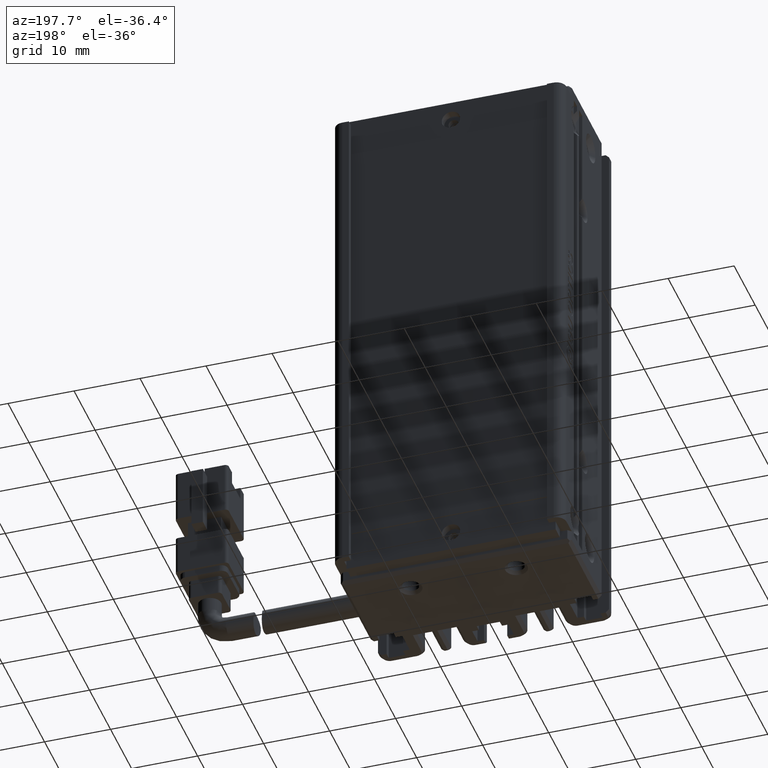
[diagram: clean part render]
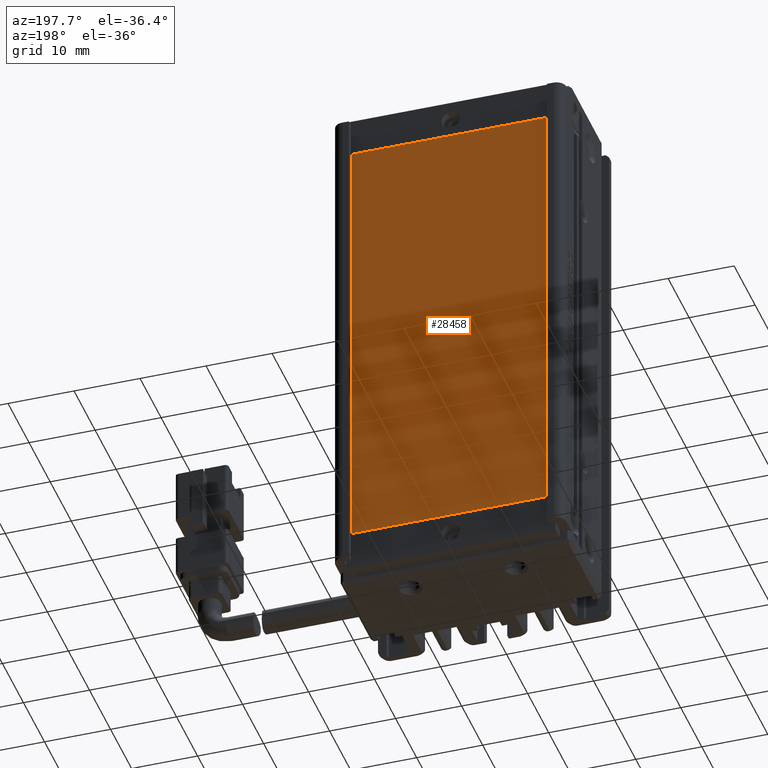
[diagram: same view with one face highlighted and labeled with its STEP entity id]
A machine part, auxiliary view. The second image highlights one B-rep face of the part: STEP entity #28458.
In plain terms, the highlighted planar face has unit normal (0, 1, -0).
Its self-contained STEP definition (entity closure, byte-faithful):
#8 = FACE_OUTER_BOUND ( 'NONE', #24729, .T. ) ;
#977 = EDGE_CURVE ( 'NONE', #12834, #3051, #6897, .T. ) ;
#3051 = VERTEX_POINT ( 'NONE', #7788 ) ;
#5732 = CARTESIAN_POINT ( 'NONE',  ( 0.0000000000000000000, 33.69073232304837300, 0.0000000000000000000 ) ) ;
#6897 = LINE ( 'NONE', #23012, #13820 ) ;
#7788 = CARTESIAN_POINT ( 'NONE',  ( 25.92537974683541800, 33.69073232304837300, -149.0000000000000300 ) ) ;
#9337 = EDGE_CURVE ( 'NONE', #34501, #22778, #14380, .T. ) ;
#10559 = CARTESIAN_POINT ( 'NONE',  ( 55.92537974683541800, 33.69073232304837300, -81.00000000000000000 ) ) ;
#11156 = CARTESIAN_POINT ( 'NONE',  ( 25.92537974683541800, 33.69073232304837300, -149.0000000000000300 ) ) ;
#11783 = ORIENTED_EDGE ( 'NONE', *, *, #26055, .T. ) ;
#12595 = CARTESIAN_POINT ( 'NONE',  ( 25.92537974683541800, 33.69073232304837300, -81.00000000000000000 ) ) ;
#12834 = VERTEX_POINT ( 'NONE', #13013 ) ;
#13013 = CARTESIAN_POINT ( 'NONE',  ( 55.92537974683542500, 33.69073232304837300, -149.0000000000000300 ) ) ;
#13820 = VECTOR ( 'NONE', #30804, 1000.000000000000000 ) ;
#14380 = LINE ( 'NONE', #37796, #18023 ) ;
#15483 = EDGE_CURVE ( 'NONE', #22778, #12834, #30541, .T. ) ;
#16484 = CARTESIAN_POINT ( 'NONE',  ( 55.92537974683542500, 33.69073232304837300, -149.0000000000000300 ) ) ;
#16863 = DIRECTION ( 'NONE',  ( 0.0000000000000000000, 0.0000000000000000000, 1.000000000000000000 ) ) ;
#17862 = DIRECTION ( 'NONE',  ( 0.0000000000000000000, 1.000000000000000000, -0.0000000000000000000 ) ) ;
#18023 = VECTOR ( 'NONE', #34966, 1000.000000000000000 ) ;
#19859 = DIRECTION ( 'NONE',  ( 2.040851148208007300E-016, -0.0000000000000000000, -1.000000000000000000 ) ) ;
#20471 = DIRECTION ( 'NONE',  ( 0.0000000000000000000, 0.0000000000000000000, 1.000000000000000000 ) ) ;
#20976 = PLANE ( 'NONE',  #35791 ) ;
#21648 = LINE ( 'NONE', #11156, #26231 ) ;
#22734 = VECTOR ( 'NONE', #19859, 1000.000000000000000 ) ;
#22778 = VERTEX_POINT ( 'NONE', #10559 ) ;
#23012 = CARTESIAN_POINT ( 'NONE',  ( 55.92537974683542500, 33.69073232304837300, -149.0000000000000300 ) ) ;
#24729 = EDGE_LOOP ( 'NONE', ( #30279, #31483, #11783, #36744 ) ) ;
#26055 = EDGE_CURVE ( 'NONE', #3051, #34501, #21648, .T. ) ;
#26231 = VECTOR ( 'NONE', #16863, 1000.000000000000000 ) ;
#28458 = ADVANCED_FACE ( 'NONE', ( #8 ), #20976, .T. ) ;
#30279 = ORIENTED_EDGE ( 'NONE', *, *, #15483, .T. ) ;
#30541 = LINE ( 'NONE', #16484, #22734 ) ;
#30804 = DIRECTION ( 'NONE',  ( -1.000000000000000000, 0.0000000000000000000, 0.0000000000000000000 ) ) ;
#31483 = ORIENTED_EDGE ( 'NONE', *, *, #977, .T. ) ;
#34501 = VERTEX_POINT ( 'NONE', #12595 ) ;
#34966 = DIRECTION ( 'NONE',  ( 1.000000000000000000, 0.0000000000000000000, 0.0000000000000000000 ) ) ;
#35791 = AXIS2_PLACEMENT_3D ( 'NONE', #5732, #17862, #20471 ) ;
#36744 = ORIENTED_EDGE ( 'NONE', *, *, #9337, .T. ) ;
#37796 = CARTESIAN_POINT ( 'NONE',  ( 25.92537974683541800, 33.69073232304837300, -81.00000000000000000 ) ) ;